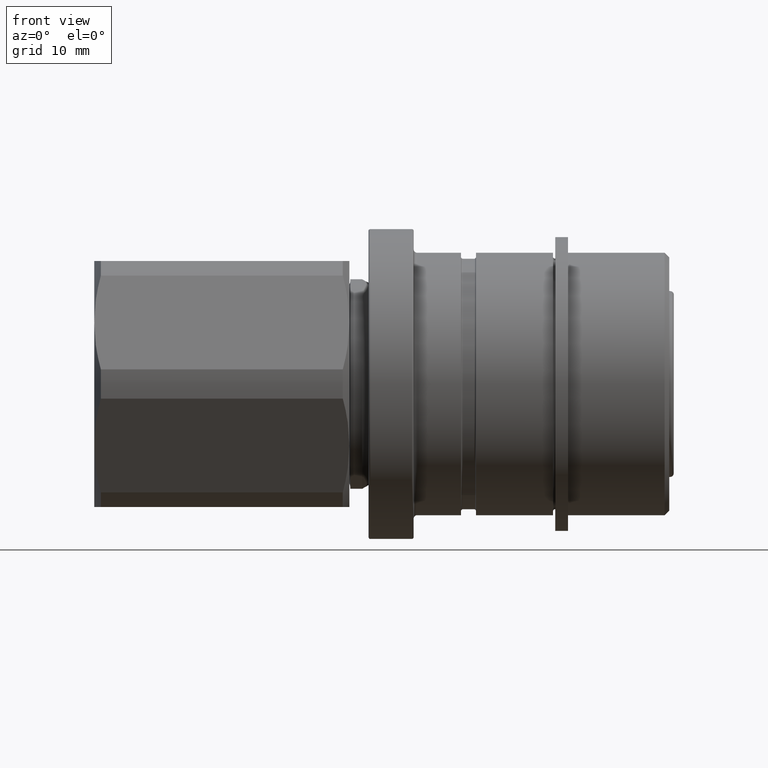
[diagram: clean part render]
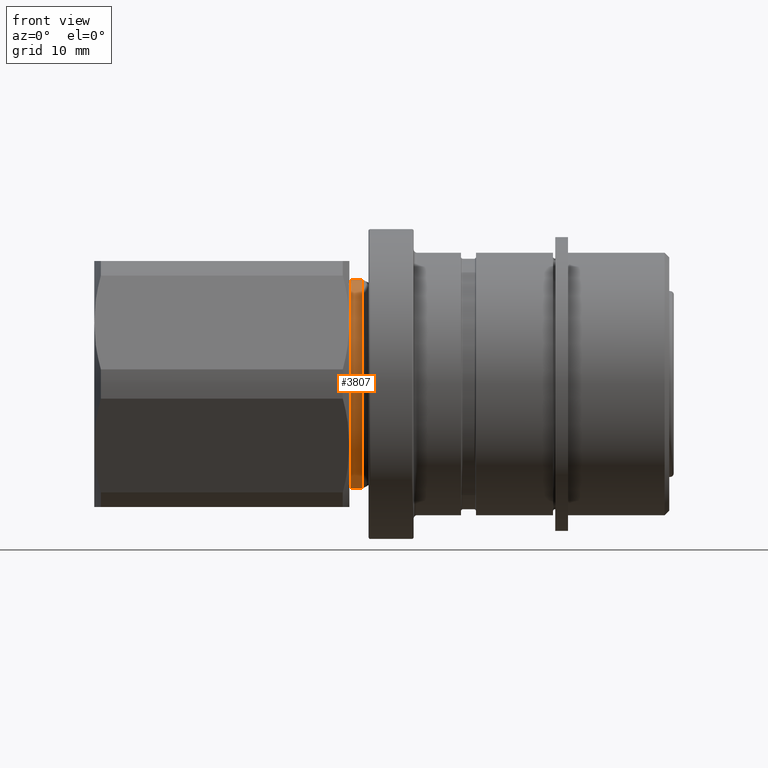
[diagram: same view with one face highlighted and labeled with its STEP entity id]
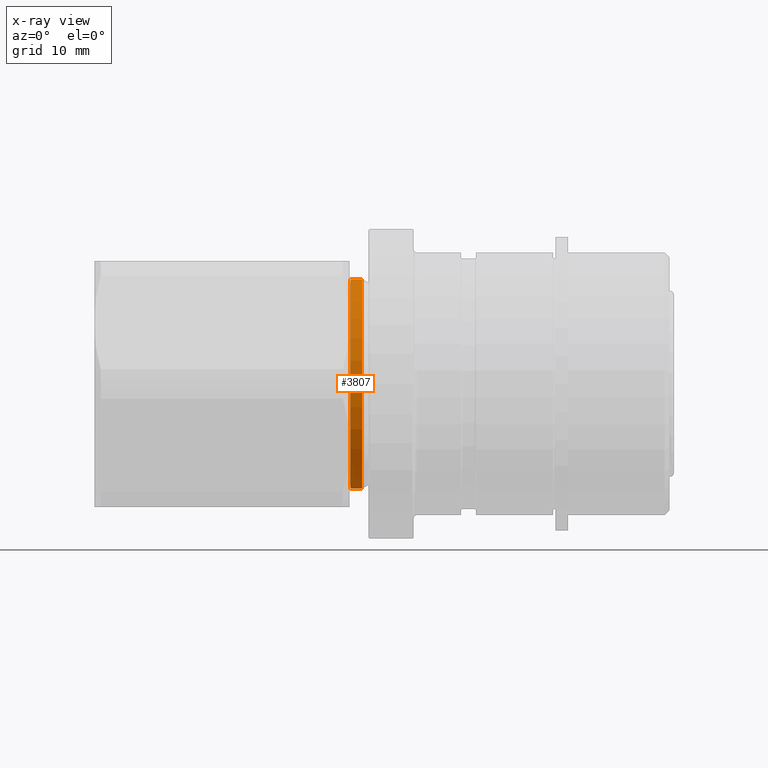
[diagram: x-ray of the same camera — body ghosted, the highlighted face saturated]
A machine part, front view. The second image highlights one B-rep face of the part: STEP entity #3807.
The next image is the same camera in x-ray: the body ghosted, the highlighted face saturated — about 0% of this face is hidden behind the body in this view.
In plain terms, the highlighted cylindrical surface (partial cylindrical patch) has radius 11.5 mm, axis along (1, -0, -0).
Its self-contained STEP definition (entity closure, byte-faithful):
#389 = EDGE_CURVE ( 'NONE', #4183, #4200, #1128, .T. ) ;
#582 = FACE_OUTER_BOUND ( 'NONE', #1419, .T. ) ;
#583 = CYLINDRICAL_SURFACE ( 'NONE', #905, 11.50000000000000200 ) ;
#756 = AXIS2_PLACEMENT_3D ( 'NONE', #2244, #2224, #2220 ) ;
#905 = AXIS2_PLACEMENT_3D ( 'NONE', #2431, #2763, #2421 ) ;
#992 = AXIS2_PLACEMENT_3D ( 'NONE', #2324, #2729, #2444 ) ;
#1128 = CIRCLE ( 'NONE', #756, 11.50000000000000200 ) ;
#1243 = LINE ( 'NONE', #4105, #1244 ) ;
#1244 = VECTOR ( 'NONE', #4108, 1000.000000000000000 ) ;
#1419 = EDGE_LOOP ( 'NONE', ( #1565, #1564, #1563, #1562 ) ) ;
#1562 = ORIENTED_EDGE ( 'NONE', *, *, #4008, .F. ) ;
#1563 = ORIENTED_EDGE ( 'NONE', *, *, #3358, .T. ) ;
#1564 = ORIENTED_EDGE ( 'NONE', *, *, #389, .T. ) ;
#1565 = ORIENTED_EDGE ( 'NONE', *, *, #4036, .F. ) ;
#2220 = DIRECTION ( 'NONE',  ( 0.0000000000000000000, 0.0000000000000000000, -1.000000000000000000 ) ) ;
#2224 = DIRECTION ( 'NONE',  ( 1.000000000000000000, -0.0000000000000000000, -0.0000000000000000000 ) ) ;
#2244 = CARTESIAN_POINT ( 'NONE',  ( 27.19999999999999900, -0.02927498360197964400, 0.0000000000000000000 ) ) ;
#2324 = CARTESIAN_POINT ( 'NONE',  ( 28.49999999999999600, -0.02927498360197964400, 0.0000000000000000000 ) ) ;
#2421 = DIRECTION ( 'NONE',  ( 0.0000000000000000000, 0.0000000000000000000, -1.000000000000000000 ) ) ;
#2431 = CARTESIAN_POINT ( 'NONE',  ( 19.09999999999999800, -0.02927498360197964400, 0.0000000000000000000 ) ) ;
#2444 = DIRECTION ( 'NONE',  ( 0.0000000000000000000, 0.0000000000000000000, -1.000000000000000000 ) ) ;
#2532 = CARTESIAN_POINT ( 'NONE',  ( 19.09999999999999800, -0.02927498360197823600, 11.50000000000000200 ) ) ;
#2543 = DIRECTION ( 'NONE',  ( 1.000000000000000000, -0.0000000000000000000, -0.0000000000000000000 ) ) ;
#2717 = CARTESIAN_POINT ( 'NONE',  ( 28.49999999999999600, -0.02927498360197823900, -11.50000000000000400 ) ) ;
#2729 = DIRECTION ( 'NONE',  ( 1.000000000000000000, -0.0000000000000000000, -0.0000000000000000000 ) ) ;
#2763 = DIRECTION ( 'NONE',  ( 1.000000000000000000, -0.0000000000000000000, -0.0000000000000000000 ) ) ;
#3358 = EDGE_CURVE ( 'NONE', #4200, #4131, #1243, .T. ) ;
#3558 = CIRCLE ( 'NONE', #992, 11.50000000000000200 ) ;
#3588 = LINE ( 'NONE', #2532, #3590 ) ;
#3590 = VECTOR ( 'NONE', #2543, 1000.000000000000000 ) ;
#3807 = ADVANCED_FACE ( 'NONE', ( #582 ), #583, .T. ) ;
#3931 = CARTESIAN_POINT ( 'NONE',  ( 27.19999999999999900, -0.02927498360197964400, -11.50000000000000200 ) ) ;
#3945 = CARTESIAN_POINT ( 'NONE',  ( 28.49999999999999600, -0.02927498360197964400, 11.50000000000000400 ) ) ;
#3949 = CARTESIAN_POINT ( 'NONE',  ( 27.19999999999999900, -0.02927498360197823600, 11.50000000000000200 ) ) ;
#4008 = EDGE_CURVE ( 'NONE', #4150, #4131, #3558, .T. ) ;
#4036 = EDGE_CURVE ( 'NONE', #4183, #4150, #3588, .T. ) ;
#4105 = CARTESIAN_POINT ( 'NONE',  ( 19.09999999999999800, -0.02927498360197964400, -11.50000000000000200 ) ) ;
#4108 = DIRECTION ( 'NONE',  ( 1.000000000000000000, -0.0000000000000000000, -0.0000000000000000000 ) ) ;
#4131 = VERTEX_POINT ( 'NONE', #2717 ) ;
#4150 = VERTEX_POINT ( 'NONE', #3945 ) ;
#4183 = VERTEX_POINT ( 'NONE', #3949 ) ;
#4200 = VERTEX_POINT ( 'NONE', #3931 ) ;